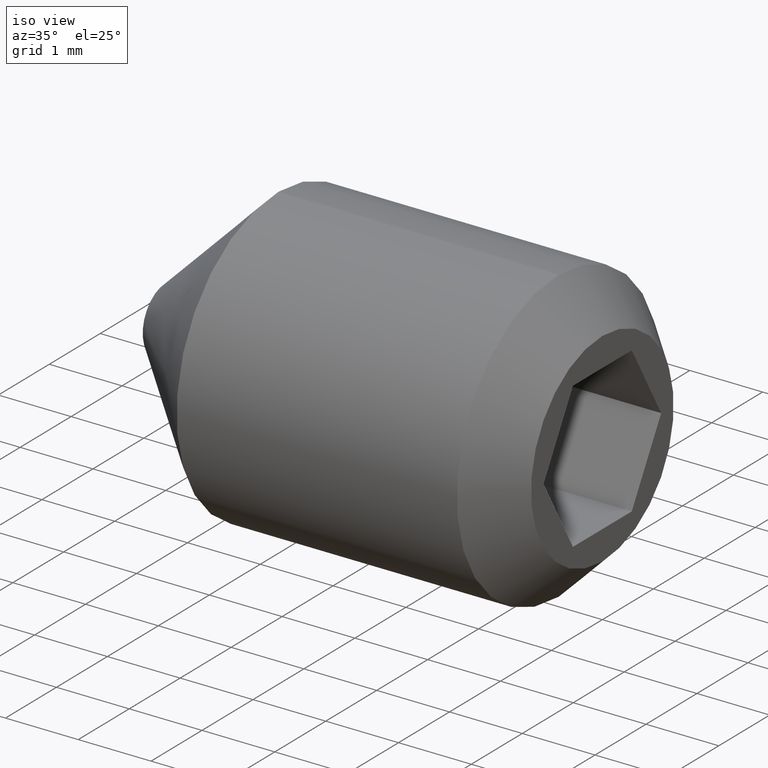
[diagram: clean part render]
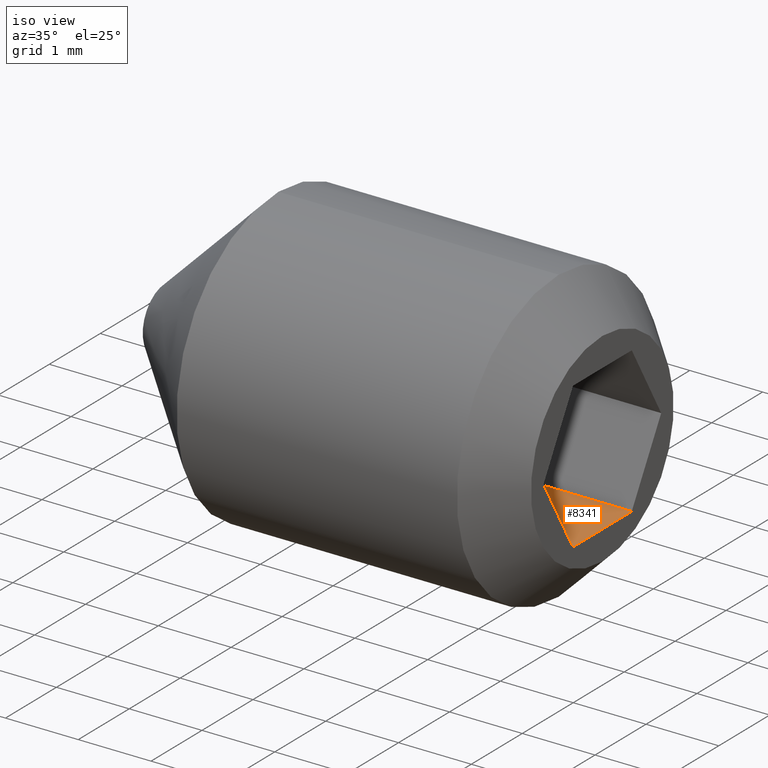
[diagram: same view with one face highlighted and labeled with its STEP entity id]
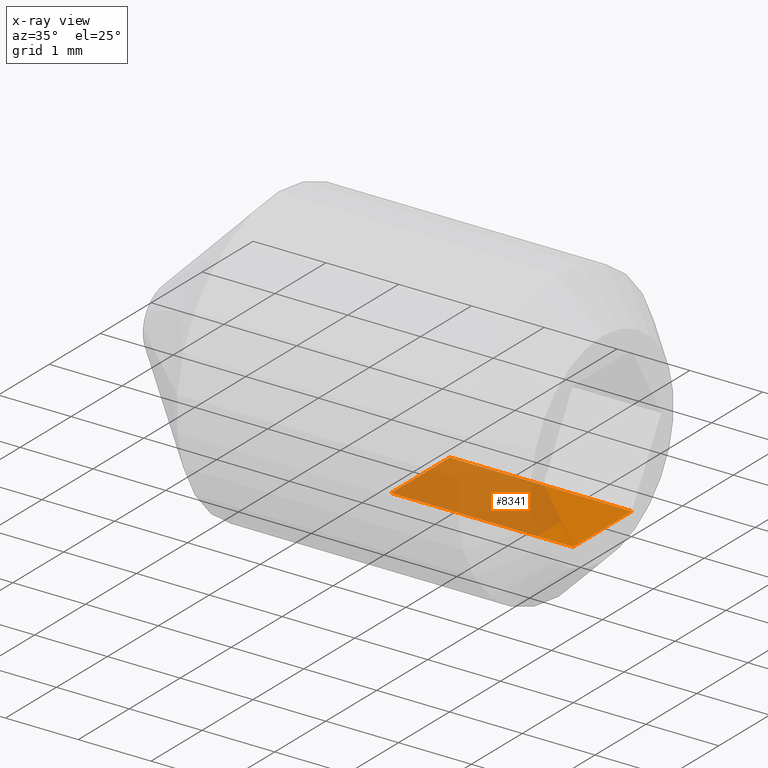
[diagram: x-ray of the same camera — body ghosted, the highlighted face saturated]
A machine part, iso view. The second image highlights one B-rep face of the part: STEP entity #8341.
The next image is the same camera in x-ray: the body ghosted, the highlighted face saturated — about 72% of this face is hidden behind the body in this view.
In plain terms, the highlighted planar face has unit normal (0, 0, -1).
Its self-contained STEP definition (entity closure, byte-faithful):
#181 = DIRECTION ( 'NONE',  ( 1.000000000000000000, -0.0000000000000000000, 6.123031769111886300E-017 ) ) ;
#535 = CARTESIAN_POINT ( 'NONE',  ( 3.500000000000000000, -0.5773502691896258400, -1.000000000000000000 ) ) ;
#703 = AXIS2_PLACEMENT_3D ( 'NONE', #7660, #4966, #10295 ) ;
#1497 = DIRECTION ( 'NONE',  ( 1.000000000000000000, -0.0000000000000000000, 6.123031769111886300E-017 ) ) ;
#1730 = ORIENTED_EDGE ( 'NONE', *, *, #5837, .F. ) ;
#1854 = VERTEX_POINT ( 'NONE', #2758 ) ;
#2141 = LINE ( 'NONE', #8092, #4056 ) ;
#2256 = LINE ( 'NONE', #10192, #8979 ) ;
#2758 = CARTESIAN_POINT ( 'NONE',  ( 6.000000000000000000, 0.5773502691896259500, -0.9999999999999997800 ) ) ;
#4056 = VECTOR ( 'NONE', #181, 1000.000000000000000 ) ;
#4203 = LINE ( 'NONE', #11205, #6000 ) ;
#4329 = VERTEX_POINT ( 'NONE', #10631 ) ;
#4760 = VECTOR ( 'NONE', #6015, 1000.000000000000000 ) ;
#4853 = VERTEX_POINT ( 'NONE', #535 ) ;
#4928 = EDGE_CURVE ( 'NONE', #9568, #1854, #4203, .T. ) ;
#4966 = DIRECTION ( 'NONE',  ( 6.123031769111886300E-017, 0.0000000000000000000, -1.000000000000000000 ) ) ;
#5349 = EDGE_CURVE ( 'NONE', #4329, #1854, #2141, .T. ) ;
#5525 = ORIENTED_EDGE ( 'NONE', *, *, #5783, .T. ) ;
#5783 = EDGE_CURVE ( 'NONE', #4853, #9568, #2256, .T. ) ;
#5837 = EDGE_CURVE ( 'NONE', #4853, #4329, #7067, .T. ) ;
#6000 = VECTOR ( 'NONE', #10213, 1000.000000000000000 ) ;
#6015 = DIRECTION ( 'NONE',  ( 0.0000000000000000000, 1.000000000000000000, 0.0000000000000000000 ) ) ;
#6147 = FACE_OUTER_BOUND ( 'NONE', #7475, .T. ) ;
#6795 = PLANE ( 'NONE',  #703 ) ;
#7067 = LINE ( 'NONE', #8532, #4760 ) ;
#7305 = ORIENTED_EDGE ( 'NONE', *, *, #5349, .F. ) ;
#7475 = EDGE_LOOP ( 'NONE', ( #9624, #7305, #1730, #5525 ) ) ;
#7660 = CARTESIAN_POINT ( 'NONE',  ( 3.500000000000000000, -0.5773502691896258400, -1.000000000000000000 ) ) ;
#8092 = CARTESIAN_POINT ( 'NONE',  ( 3.500000000000000000, 0.5773502691896259500, -1.000000000000000000 ) ) ;
#8341 = ADVANCED_FACE ( 'NONE', ( #6147 ), #6795, .F. ) ;
#8532 = CARTESIAN_POINT ( 'NONE',  ( 3.500000000000000000, -0.5773502691896258400, -1.000000000000000000 ) ) ;
#8979 = VECTOR ( 'NONE', #1497, 1000.000000000000000 ) ;
#9568 = VERTEX_POINT ( 'NONE', #9923 ) ;
#9624 = ORIENTED_EDGE ( 'NONE', *, *, #4928, .T. ) ;
#9923 = CARTESIAN_POINT ( 'NONE',  ( 6.000000000000000000, -0.5773502691896258400, -0.9999999999999997800 ) ) ;
#10192 = CARTESIAN_POINT ( 'NONE',  ( 3.500000000000000000, -0.5773502691896258400, -1.000000000000000000 ) ) ;
#10213 = DIRECTION ( 'NONE',  ( 0.0000000000000000000, 1.000000000000000000, 0.0000000000000000000 ) ) ;
#10295 = DIRECTION ( 'NONE',  ( -1.000000000000000000, 0.0000000000000000000, -6.123031769111886300E-017 ) ) ;
#10631 = CARTESIAN_POINT ( 'NONE',  ( 3.500000000000000000, 0.5773502691896259500, -1.000000000000000000 ) ) ;
#11205 = CARTESIAN_POINT ( 'NONE',  ( 6.000000000000000000, -0.5773502691896258400, -0.9999999999999997800 ) ) ;